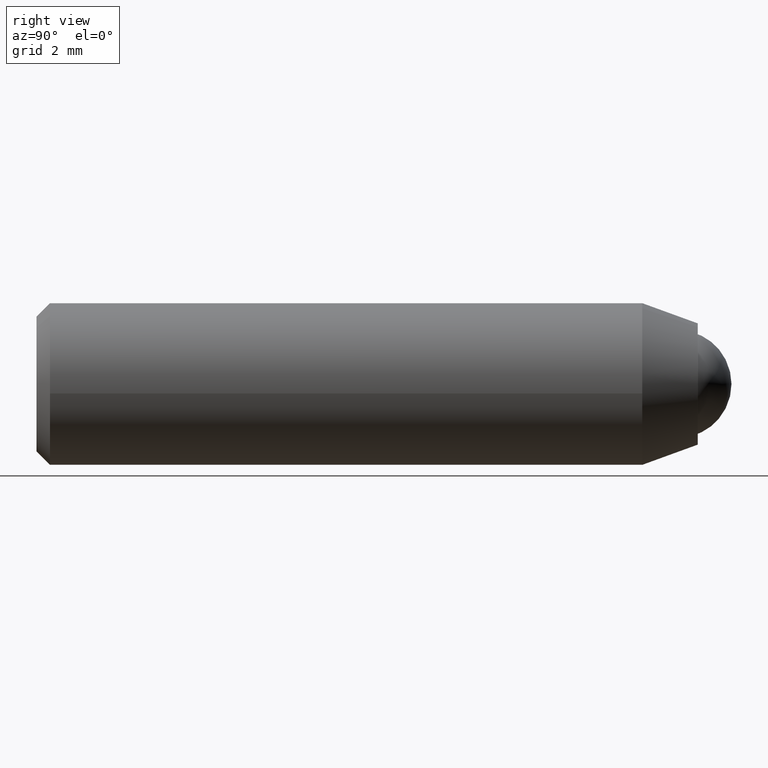
[diagram: clean part render]
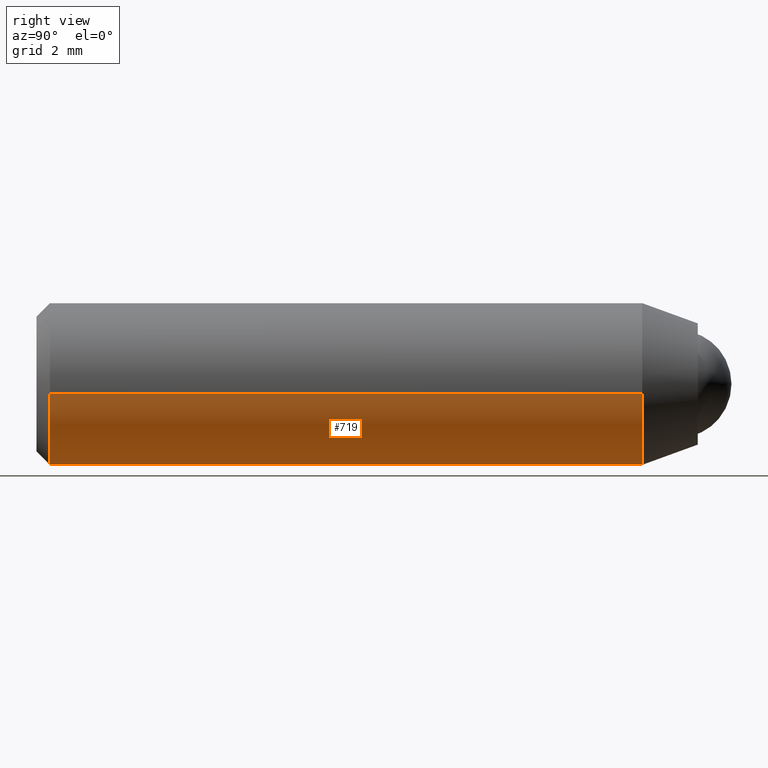
[diagram: same view with one face highlighted and labeled with its STEP entity id]
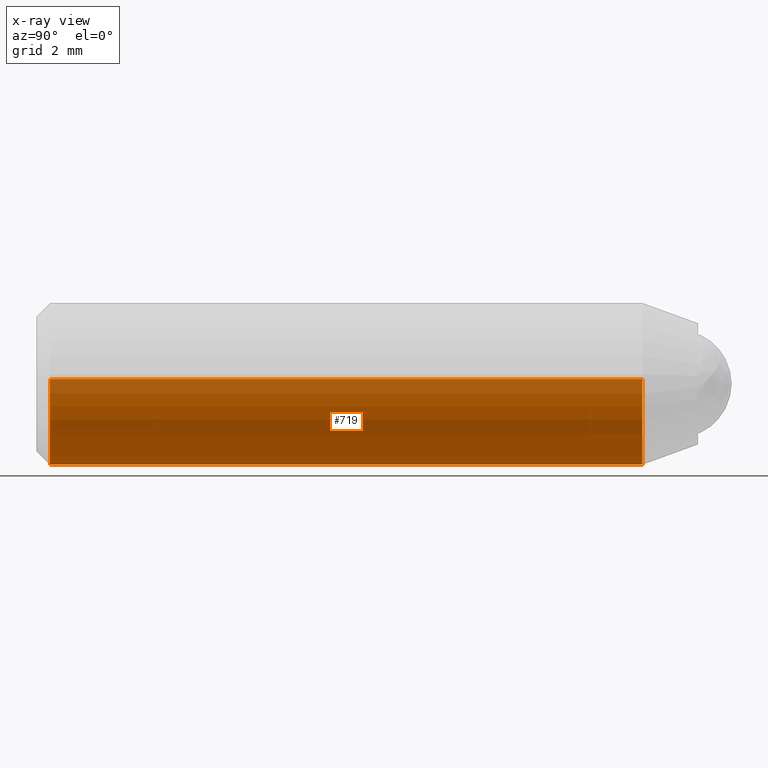
[diagram: x-ray of the same camera — body ghosted, the highlighted face saturated]
A machine part, right view. The second image highlights one B-rep face of the part: STEP entity #719.
The next image is the same camera in x-ray: the body ghosted, the highlighted face saturated — about 17% of this face is hidden behind the body in this view.
In plain terms, the highlighted face is a freeform B-spline surface patch.
Its self-contained STEP definition (entity closure, byte-faithful):
#252=CARTESIAN_POINT('',(2.979029056470349,-24.049999999999990,-0.354098687782129));
#253=VERTEX_POINT('',#252);
#319=CARTESIAN_POINT('',(-2.994404684975035,-24.050000000000011,0.183140881774212));
#320=VERTEX_POINT('',#319);
#334=CARTESIAN_POINT('',(0.0,-24.050000000000001,-3.000000000000001));
#335=VERTEX_POINT('',#334);
#336=CARTESIAN_POINT('',(-2.994404684975035,-24.050000000000011,0.183140881774212));
#337=CARTESIAN_POINT('',(-3.0,-24.049999999999997,0.091655914840068));
#338=CARTESIAN_POINT('',(-3.0,-24.050000000000001,-6.765950E-016));
#339=CARTESIAN_POINT('',(-3.0,-24.050000000000004,-3.0));
#340=CARTESIAN_POINT('',(0.0,-24.050000000000001,-3.000000000000001));
#348=(BOUNDED_CURVE()B_SPLINE_CURVE(2,(#336,#337,#338,#339,#340),.UNSPECIFIED.,.F.,.U.)B_SPLINE_CURVE_WITH_KNOTS((3,2,3),(0.739333235192756,0.750000000000000,1.0),.UNSPECIFIED.)CURVE()GEOMETRIC_REPRESENTATION_ITEM()RATIONAL_B_SPLINE_CURVE((0.976072626659396,0.987503107685121,1.0,0.707106781186548,1.0))REPRESENTATION_ITEM(''));
#349=EDGE_CURVE('',#320,#335,#348,.T.);
#351=CARTESIAN_POINT('',(0.0,-24.050000000000001,-3.000000000000001));
#352=CARTESIAN_POINT('',(2.664527195330646,-24.049999999999997,-3.000000000000001));
#353=CARTESIAN_POINT('',(2.979029056470349,-24.049999999999994,-0.354098687782129));
#361=(BOUNDED_CURVE()B_SPLINE_CURVE(2,(#351,#352,#353),.UNSPECIFIED.,.F.,.U.)B_SPLINE_CURVE_WITH_KNOTS((3,3),(0.0,0.229562701358004),.UNSPECIFIED.)CURVE()GEOMETRIC_REPRESENTATION_ITEM()RATIONAL_B_SPLINE_CURVE((1.0,0.731050565918972,0.956027200768721))REPRESENTATION_ITEM(''));
#362=EDGE_CURVE('',#335,#253,#361,.T.);
#518=CARTESIAN_POINT('',(-2.994404537156918,-2.060607996040597,0.183143275066042));
#519=VERTEX_POINT('',#518);
#563=CARTESIAN_POINT('',(2.979029050587920,-2.060608000000000,-0.354098737271509));
#564=VERTEX_POINT('',#563);
#580=CARTESIAN_POINT('',(0.0,-2.060608000000000,-3.000000000000001));
#581=VERTEX_POINT('',#580);
#582=CARTESIAN_POINT('',(0.0,-2.060608000000000,-3.000000000000001));
#583=CARTESIAN_POINT('',(2.664527150754361,-2.060608000000000,-3.000000000000001));
#584=CARTESIAN_POINT('',(2.979029050587920,-2.060608000000000,-0.354098737271510));
#592=(BOUNDED_CURVE()B_SPLINE_CURVE(2,(#582,#583,#584),.UNSPECIFIED.,.F.,.U.)B_SPLINE_CURVE_WITH_KNOTS((3,3),(0.0,0.229562698550422),.UNSPECIFIED.)CURVE()GEOMETRIC_REPRESENTATION_ITEM()RATIONAL_B_SPLINE_CURVE((1.0,0.731050569208259,0.956027195265733))REPRESENTATION_ITEM(''));
#593=EDGE_CURVE('',#581,#564,#592,.T.);
#595=CARTESIAN_POINT('',(-2.994404537156918,-2.060607996040598,0.183143275066042));
#596=CARTESIAN_POINT('',(-3.000000000000000,-2.060608000000000,0.091657114885156));
#597=CARTESIAN_POINT('',(-3.0,-2.060608000000000,-6.765950E-016));
#598=CARTESIAN_POINT('',(-3.0,-2.060607999999999,-3.0));
#599=CARTESIAN_POINT('',(0.0,-2.060608000000000,-3.000000000000001));
#607=(BOUNDED_CURVE()B_SPLINE_CURVE(2,(#595,#596,#597,#598,#599),.UNSPECIFIED.,.F.,.U.)B_SPLINE_CURVE_WITH_KNOTS((3,2,3),(0.739333097278809,0.750000000000000,1.0),.UNSPECIFIED.)CURVE()GEOMETRIC_REPRESENTATION_ITEM()RATIONAL_B_SPLINE_CURVE((0.976072331083028,0.987502946108882,1.0,0.707106781186548,1.0))REPRESENTATION_ITEM(''));
#608=EDGE_CURVE('',#519,#581,#607,.T.);
#674=CARTESIAN_POINT('',(2.979029050587920,-2.060608000000000,-0.354098737271509));
#675=CARTESIAN_POINT('',(2.979029056470349,-24.049999999999990,-0.354098687782129));
#676=QUASI_UNIFORM_CURVE('',1,(#674,#675),.UNSPECIFIED.,.F.,.U.);
#677=EDGE_CURVE('',#564,#253,#676,.T.);
#682=CARTESIAN_POINT('',(-2.994404537156918,-2.060607996040597,0.183143275066042));
#683=CARTESIAN_POINT('',(-2.994404684975035,-24.050000000000011,0.183140881774212));
#684=QUASI_UNIFORM_CURVE('',1,(#682,#683),.UNSPECIFIED.,.F.,.U.);
#685=EDGE_CURVE('',#519,#320,#684,.T.);
#693=CARTESIAN_POINT('',(-2.994404395265600,-1.510873199999999,0.183145618604570));
#694=CARTESIAN_POINT('',(-3.177550013870171,-1.510873199999999,-2.811258776661029));
#695=CARTESIAN_POINT('',(-0.183145618604571,-1.510873199999999,-2.994404395265601));
#696=CARTESIAN_POINT('',(2.644630472518504,-1.510873200000000,-3.167358590197583));
#697=CARTESIAN_POINT('',(2.979028579091000,-1.510873199999999,-0.354102703970276));
#698=CARTESIAN_POINT('',(-2.994404395265600,-24.613478170000000,0.183145618604570));
#699=CARTESIAN_POINT('',(-3.177550013870171,-24.613478170000004,-2.811258776661029));
#700=CARTESIAN_POINT('',(-0.183145618604571,-24.613478170000000,-2.994404395265601));
#701=CARTESIAN_POINT('',(2.644630472518504,-24.613478170000011,-3.167358590197583));
#702=CARTESIAN_POINT('',(2.979028579091000,-24.613478170000011,-0.354102703970276));
#710=(BOUNDED_SURFACE()B_SPLINE_SURFACE(2,1,((#693,#698),(#694,#699),(#695,#700),(#696,#701),(#697,#702)),.UNSPECIFIED.,.F.,.F.,.U.)B_SPLINE_SURFACE_WITH_KNOTS((3,2,3),(2,2),(0.0,4.970562748477139,9.742302987015194),(0.0,23.102604970000019),.UNSPECIFIED.)GEOMETRIC_REPRESENTATION_ITEM()RATIONAL_B_SPLINE_SURFACE(((1.0,1.0),(0.707106781186548,0.707106781186548),(1.0,1.0),(0.718822509939086,0.718822509939086),(0.977505800795127,0.977505800795127)))REPRESENTATION_ITEM('')SURFACE());
#711=ORIENTED_EDGE('',*,*,#362,.F.);
#712=ORIENTED_EDGE('',*,*,#349,.F.);
#713=ORIENTED_EDGE('',*,*,#685,.F.);
#714=ORIENTED_EDGE('',*,*,#608,.T.);
#715=ORIENTED_EDGE('',*,*,#593,.T.);
#716=ORIENTED_EDGE('',*,*,#677,.T.);
#717=EDGE_LOOP('',(#711,#712,#713,#714,#715,#716));
#718=FACE_OUTER_BOUND('',#717,.T.);
#719=ADVANCED_FACE('',(#718),#710,.T.);